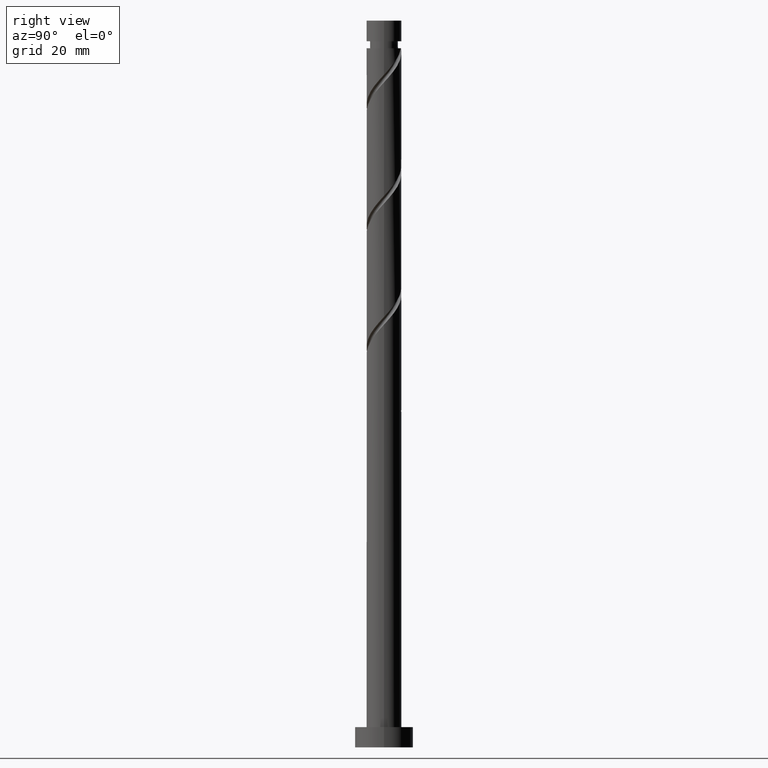
[diagram: clean part render]
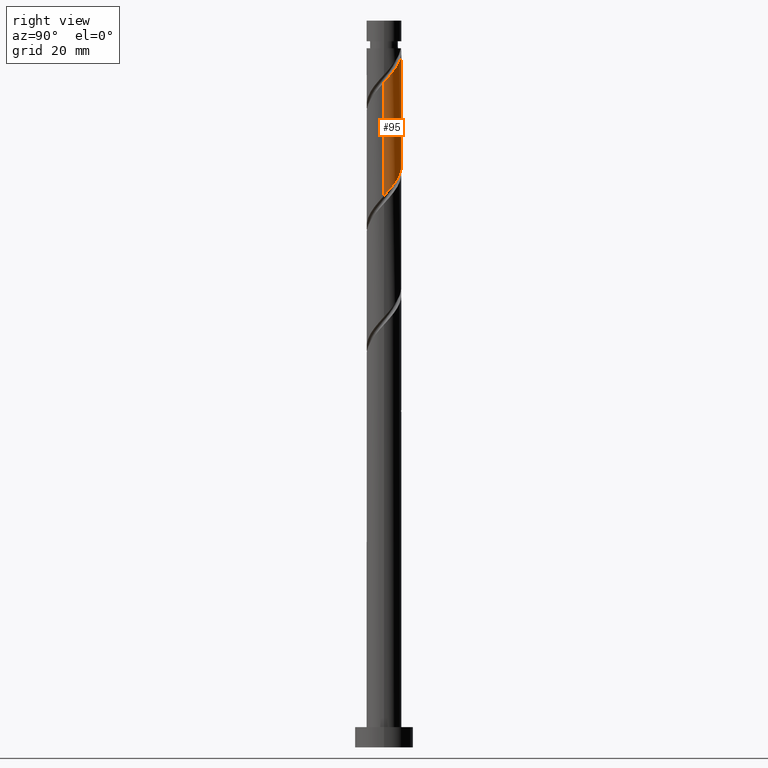
[diagram: same view with one face highlighted and labeled with its STEP entity id]
A machine part, right view. The second image highlights one B-rep face of the part: STEP entity #95.
In plain terms, the highlighted cylindrical surface (edge-blend (fillet) strip) has radius 6 mm, axis along (-0, -0, -1).
Its self-contained STEP definition (entity closure, byte-faithful):
#12 = CARTESIAN_POINT ( 'NONE',  ( 5.981047158774067007, 0.4765237502168834793, 229.2812024638064372 ) ) ;
#31 = CARTESIAN_POINT ( 'NONE',  ( 1.675351105655004114, 5.761353892339948324, 237.2940229766269340 ) ) ;
#49 = EDGE_CURVE ( 'NONE', #411, #634, #976, .T. ) ;
#51 = CARTESIAN_POINT ( 'NONE',  ( -5.693209200619056887, 1.894035110019486767, 208.4478691304731228 ) ) ;
#53 = CARTESIAN_POINT ( 'NONE',  ( 6.000000000000008882, 3.858632141587972029E-15, 228.7545626391966209 ) ) ;
#70 = CARTESIAN_POINT ( 'NONE',  ( -5.074502617697516094, 3.201472033765258463, 206.8453050279090348 ) ) ;
#88 = CARTESIAN_POINT ( 'NONE',  ( 2.566465998611315413, 5.423398591102451149, 197.2299204125243932 ) ) ;
#95 = ADVANCED_FACE ( 'NONE', ( #533 ), #115, .T. ) ;
#108 = DIRECTION ( 'NONE',  ( -0.000000000000000000, -0.000000000000000000, -1.000000000000000000 ) ) ;
#115 = CYLINDRICAL_SURFACE ( 'NONE', #1132, 6.000000000000000888 ) ;
#122 = EDGE_CURVE ( 'NONE', #436, #1816, #280, .T. ) ;
#165 = CARTESIAN_POINT ( 'NONE',  ( 4.160884387701922371, 4.322851039785954974, 234.0888947714987580 ) ) ;
#227 = CARTESIAN_POINT ( 'NONE',  ( 1.907946185874840994, 5.735023982526336717, 198.0312024638064656 ) ) ;
#234 = CARTESIAN_POINT ( 'NONE',  ( 5.231142575426952490, 3.027524745382283999, 193.2235101561141732 ) ) ;
#245 = CARTESIAN_POINT ( 'NONE',  ( 5.803669174988022483, 1.687656018162594584, 191.6209460535500853 ) ) ;
#254 = CARTESIAN_POINT ( 'NONE',  ( 4.792871779619305883, 3.609484742193665774, 194.0247922073962457 ) ) ;
#279 = CARTESIAN_POINT ( 'NONE',  ( 6.000000000000008882, 3.858632141587972029E-15, 228.7545626391966209 ) ) ;
#280 = CIRCLE ( 'NONE', #1198, 5.999999999999984901 ) ;
#287 =( BOUNDED_CURVE ( )  B_SPLINE_CURVE ( 2, ( #53, #465, #12, #860, #1150, #1437, #869, #712, #165, #996, #1722, #1014, #31, #1140, #1168, #720, #329 ),
 .UNSPECIFIED., .F., .T. ) 
 B_SPLINE_CURVE_WITH_KNOTS ( ( 3, 2, 2, 2, 2, 2, 2, 2, 3 ),
 ( 0.6795271625973833274, 0.6826923076923077094, 0.6923076923076921796, 0.7019230769230767608, 0.7115384615384614531, 0.7211538461538459233, 0.7307692307692306155, 0.7403846153846150857, 0.7499999999999996669 ),
 .UNSPECIFIED. ) 
 CURVE ( )  GEOMETRIC_REPRESENTATION_ITEM ( )  RATIONAL_B_SPLINE_CURVE ( ( 0.9061636035682812951, 0.9069090390690699444, 0.9090909090909264911, 0.9024626128164299210, 0.9090909090909264911, 0.9024626128164299210, 0.9090909090909264911, 0.9024626128164299210, 0.9090909090909264911, 0.9024626128164299210, 0.9090909090909264911, 0.9024626128164299210, 0.9090909090909264911, 0.9024626128164299210, 0.9090909090909264911, 0.9024626128164301431, 0.9090909090909262691 ) ) 
 REPRESENTATION_ITEM ( '' )  );
#297 = CARTESIAN_POINT ( 'NONE',  ( -5.999999999999984901, 0.000000000000000000, 240.4991511817551952 ) ) ;
#317 = EDGE_LOOP ( 'NONE', ( #1587, #785, #392, #877, #598 ) ) ;
#327 = CARTESIAN_POINT ( 'NONE',  ( 3.224985811347786946, 5.111773199678567359, 196.4286383612424061 ) ) ;
#329 = CARTESIAN_POINT ( 'NONE',  ( -1.193984924527944358, 5.880000000000008775, 240.4991511817551384 ) ) ;
#356 = CARTESIAN_POINT ( 'NONE',  ( -6.000000000000000888, -1.555417607461827983E-15, 210.5770730576470555 ) ) ;
#392 = ORIENTED_EDGE ( 'NONE', *, *, #49, .F. ) ;
#411 = VERTEX_POINT ( 'NONE', #973 ) ;
#436 = VERTEX_POINT ( 'NONE', #297 ) ;
#465 = CARTESIAN_POINT ( 'NONE',  ( 6.000000000000009770, 0.2386387820206082033, 229.0187335548295664 ) ) ;
#468 = DIRECTION ( 'NONE',  ( -0.000000000000000000, -0.000000000000000000, -1.000000000000000000 ) ) ;
#489 = CARTESIAN_POINT ( 'NONE',  ( -5.981047158774059014, 0.4765237502168877537, 210.0504332330371824 ) ) ;
#507 = CARTESIAN_POINT ( 'NONE',  ( -2.374906121308203222, 5.557929438497705377, 202.8388947714987864 ) ) ;
#533 = FACE_OUTER_BOUND ( 'NONE', #317, .T. ) ;
#598 = ORIENTED_EDGE ( 'NONE', *, *, #122, .T. ) ;
#607 = CARTESIAN_POINT ( 'NONE',  ( -4.685773534127136486, 3.817628205472644698, 206.0440229766269908 ) ) ;
#617 = CARTESIAN_POINT ( 'NONE',  ( 3.789793397579724665, 4.651608969341804567, 195.6273563099602768 ) ) ;
#623 = CARTESIAN_POINT ( 'NONE',  ( -6.000000000000000888, 0.000000000000000000, 250.0000000000000000 ) ) ;
#631 = DIRECTION ( 'NONE',  ( -0.000000000000000000, -0.000000000000000000, -1.000000000000000000 ) ) ;
#634 = VERTEX_POINT ( 'NONE', #754 ) ;
#677 = VECTOR ( 'NONE', #468, 1000.000000000000000 ) ;
#712 = CARTESIAN_POINT ( 'NONE',  ( 4.685773534127145368, 3.817628205472644254, 233.2876127202166856 ) ) ;
#720 = CARTESIAN_POINT ( 'NONE',  ( -0.4800236631810241850, 6.024976017473672840, 239.6978691304731512 ) ) ;
#727 = EDGE_CURVE ( 'NONE', #436, #411, #782, .T. ) ;
#746 = CARTESIAN_POINT ( 'NONE',  ( -6.000000000000001776, 0.2386387820206087862, 210.3129021420141100 ) ) ;
#754 = CARTESIAN_POINT ( 'NONE',  ( 6.000000000000001776, -6.371229815180181378E-15, 189.7437397243137980 ) ) ;
#767 = CARTESIAN_POINT ( 'NONE',  ( -5.463231701267899254, 2.585315862057873559, 207.6465870791911073 ) ) ;
#782 = LINE ( 'NONE', #623, #1066 ) ;
#785 = ORIENTED_EDGE ( 'NONE', *, *, #1182, .T. ) ;
#792 = DIRECTION ( 'NONE',  ( -1.000000000000000000, 0.000000000000000000, 0.000000000000000000 ) ) ;
#801 = CARTESIAN_POINT ( 'NONE',  ( 5.921288396282960775, 0.9686814378549617466, 190.8196640022679844 ) ) ;
#810 = CARTESIAN_POINT ( 'NONE',  ( 0.000000000000000000, 0.000000000000000000, 240.4991511817551952 ) ) ;
#860 = CARTESIAN_POINT ( 'NONE',  ( 5.923186699970223401, 1.202754357981099087, 230.0824845150885380 ) ) ;
#869 = CARTESIAN_POINT ( 'NONE',  ( 5.074502617697525864, 3.201472033765261127, 232.4863306689346132 ) ) ;
#877 = ORIENTED_EDGE ( 'NONE', *, *, #727, .F. ) ;
#916 = CARTESIAN_POINT ( 'NONE',  ( -3.005450681292447968, 5.193001656298481095, 203.6401768227808020 ) ) ;
#925 = CARTESIAN_POINT ( 'NONE',  ( -4.160884387701912601, 4.322851039785952310, 205.2427409253449184 ) ) ;
#973 = CARTESIAN_POINT ( 'NONE',  ( -6.000000000000000888, -1.555417607461828181E-15, 210.5770730576470839 ) ) ;
#976 =( BOUNDED_CURVE ( )  B_SPLINE_CURVE ( 2, ( #356, #746, #489, #1482, #51, #767, #70, #607, #925, #1361, #916, #507, #1176, #1353, #1472, #1072, #1333, #227, #88, #327, #617, #1107, #254, #234, #1527, #245, #801, #1795, #1518 ),
 .UNSPECIFIED., .F., .T. ) 
 B_SPLINE_CURVE_WITH_KNOTS ( ( 3, 2, 2, 2, 2, 2, 2, 2, 2, 2, 2, 2, 2, 2, 3 ),
 ( 0.4295271625973832719, 0.4326923076923077094, 0.4423076923076922906, 0.4519230769230769273, 0.4615384615384615641, 0.4711538461538461453, 0.4807692307692307820, 0.4903846153846153633, 0.5000000000000000000, 0.5096153846153845812, 0.5192307692307692735, 0.5288461538461538547, 0.5384615384615384359, 0.5480769230769231282, 0.5545271625973832164 ),
 .UNSPECIFIED. ) 
 CURVE ( )  GEOMETRIC_REPRESENTATION_ITEM ( )  RATIONAL_B_SPLINE_CURVE ( ( 0.9061636035682754109, 0.9069090390690641712, 0.9090909090909207180, 0.9024626128164241479, 0.9090909090909207180, 0.9024626128164241479, 0.9090909090909207180, 0.9024626128164241479, 0.9090909090909207180, 0.9024626128164241479, 0.9090909090909207180, 0.9024626128164241479, 0.9090909090909207180, 0.9024626128164241479, 0.9090909090909207180, 0.9024626128164241479, 0.9090909090909207180, 0.9024626128164241479, 0.9090909090909207180, 0.9024626128164241479, 0.9090909090909207180, 0.9024626128164241479, 0.9090909090909207180, 0.9024626128164241479, 0.9090909090909207180, 0.9024626128164241479, 0.9090909090909207180, 0.9046444828382808057, 0.9061636035682756329 ) ) 
 REPRESENTATION_ITEM ( '' )  );
#996 = CARTESIAN_POINT ( 'NONE',  ( 3.635995241276702927, 4.828073874099260365, 234.8901768227807736 ) ) ;
#1014 = CARTESIAN_POINT ( 'NONE',  ( 2.374906121308208995, 5.557929438497708929, 236.4927409253449468 ) ) ;
#1066 = VECTOR ( 'NONE', #631, 1000.000000000000000 ) ;
#1072 = CARTESIAN_POINT ( 'NONE',  ( 0.4800236631810532173, 6.024976017473666623, 199.6337665663705536 ) ) ;
#1107 = CARTESIAN_POINT ( 'NONE',  ( 4.354600983811661941, 4.191444739005048881, 194.8260742586782897 ) ) ;
#1132 = AXIS2_PLACEMENT_3D ( 'NONE', #1266, #1803, #792 ) ;
#1140 = CARTESIAN_POINT ( 'NONE',  ( 0.9757960900017957906, 5.964778346182185942, 238.0953050279090348 ) ) ;
#1150 = CARTESIAN_POINT ( 'NONE',  ( 5.693209200619064880, 1.894035110019484103, 230.8837665663705536 ) ) ;
#1168 = CARTESIAN_POINT ( 'NONE',  ( 0.2478862134103759218, 5.994877181827931167, 238.8965870791910504 ) ) ;
#1176 = CARTESIAN_POINT ( 'NONE',  ( -1.675351105654997008, 5.761353892339941218, 202.0376127202166856 ) ) ;
#1182 = EDGE_CURVE ( 'NONE', #1807, #634, #1319, .T. ) ;
#1198 = AXIS2_PLACEMENT_3D ( 'NONE', #810, #108, #1237 ) ;
#1237 = DIRECTION ( 'NONE',  ( -1.000000000000000000, 0.000000000000000000, 0.000000000000000000 ) ) ;
#1266 = CARTESIAN_POINT ( 'NONE',  ( 0.000000000000000000, 0.000000000000000000, 250.0000000000000000 ) ) ;
#1284 = CARTESIAN_POINT ( 'NONE',  ( -1.193984924527944358, 5.880000000000007887, 240.4991511817551384 ) ) ;
#1319 = LINE ( 'NONE', #1329, #677 ) ;
#1329 = CARTESIAN_POINT ( 'NONE',  ( 6.000000000000000888, 7.347880794884120722E-16, 250.0000000000000000 ) ) ;
#1333 = CARTESIAN_POINT ( 'NONE',  ( 1.193984924527946578, 5.879999999999999005, 198.8324845150885665 ) ) ;
#1353 = CARTESIAN_POINT ( 'NONE',  ( -0.9757960900017910166, 5.964778346182179725, 201.2363306689347553 ) ) ;
#1361 = CARTESIAN_POINT ( 'NONE',  ( -3.635995241276694490, 4.828073874099260365, 204.4414588740629313 ) ) ;
#1437 = CARTESIAN_POINT ( 'NONE',  ( 5.463231701267908136, 2.585315862057873115, 231.6850486176525976 ) ) ;
#1472 = CARTESIAN_POINT ( 'NONE',  ( -0.2478862134103690662, 5.994877181827922286, 200.4350486176525408 ) ) ;
#1482 = CARTESIAN_POINT ( 'NONE',  ( -5.923186699970216296, 1.202754357981100419, 209.2491511817551952 ) ) ;
#1503 = EDGE_CURVE ( 'NONE', #1807, #1816, #287, .T. ) ;
#1518 = CARTESIAN_POINT ( 'NONE',  ( 6.000000000000000888, -6.371229815180181378E-15, 189.7437397243137980 ) ) ;
#1527 = CARTESIAN_POINT ( 'NONE',  ( 5.517405875207487043, 2.357590381772439958, 192.4222281048321292 ) ) ;
#1587 = ORIENTED_EDGE ( 'NONE', *, *, #1503, .F. ) ;
#1722 = CARTESIAN_POINT ( 'NONE',  ( 3.005450681292455961, 5.193001656298486424, 235.6914588740627892 ) ) ;
#1795 = CARTESIAN_POINT ( 'NONE',  ( 6.000000000000000888, 0.4875386312222789176, 190.2834404616620816 ) ) ;
#1803 = DIRECTION ( 'NONE',  ( -0.000000000000000000, -0.000000000000000000, -1.000000000000000000 ) ) ;
#1807 = VERTEX_POINT ( 'NONE', #279 ) ;
#1816 = VERTEX_POINT ( 'NONE', #1284 ) ;